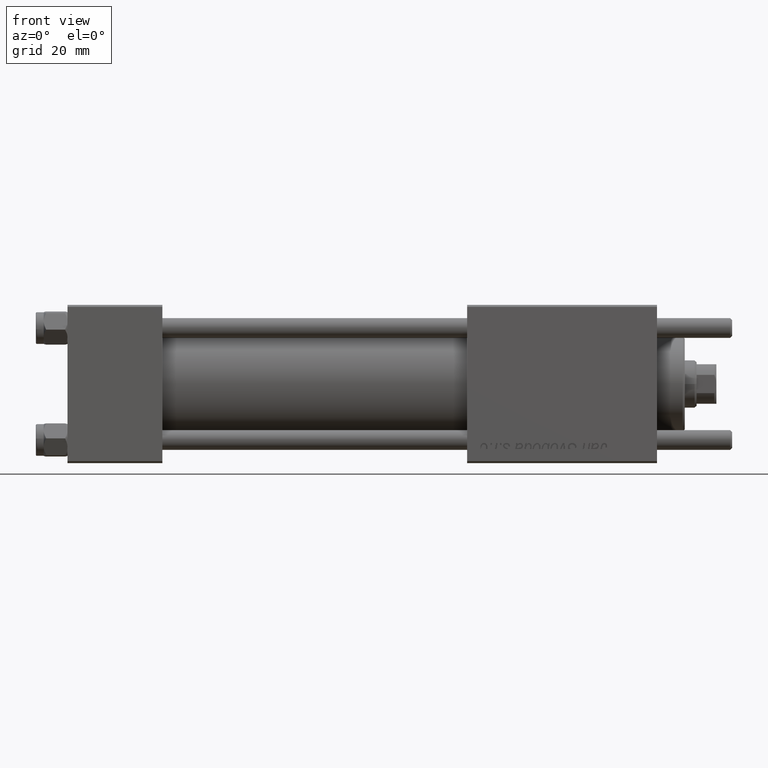
[diagram: clean part render]
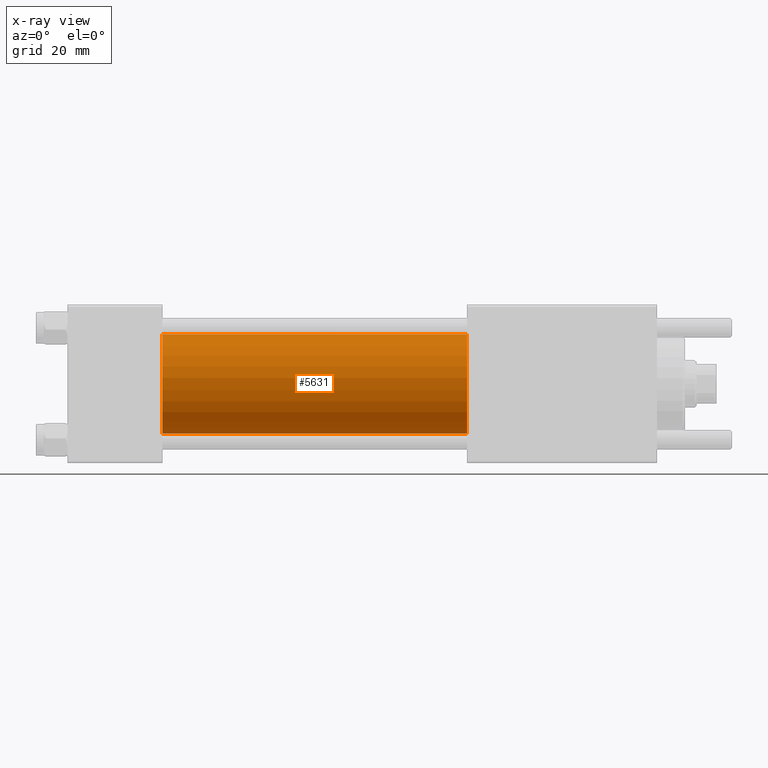
[diagram: x-ray — body ghosted, one internal face saturated and labeled with its STEP entity id]
A machine part, front view, then the same camera in x-ray: the body is ghosted and one INTERNAL B-rep face — a face not visible from any outside direction — is saturated and labeled: STEP entity #5631.
In plain terms, the highlighted cylindrical surface (partial cylindrical patch) has radius 12.5 mm, axis along (-1, -0, -0).
Its self-contained STEP definition (entity closure, byte-faithful):
#13 = DIRECTION ( 'NONE',  ( -1.000000000000000000, -0.000000000000000000, -0.000000000000000000 ) ) ;
#3605 = CARTESIAN_POINT ( 'NONE',  ( 24.00000000000000000, -2.602085213965210642E-15, 0.000000000000000000 ) ) ;
#5631 = ADVANCED_FACE ( 'NONE', ( #52221 ), #39297, .F. ) ;
#7389 = CIRCLE ( 'NONE', #39453, 12.49999999999999645 ) ;
#7569 = CARTESIAN_POINT ( 'NONE',  ( 24.00000000000000000, -1.071276715031019515E-15, -12.49999999999999645 ) ) ;
#9321 = DIRECTION ( 'NONE',  ( 0.000000000000000000, 0.000000000000000000, -1.000000000000000000 ) ) ;
#10153 = CARTESIAN_POINT ( 'NONE',  ( 101.0000000000000000, -2.602085213965210642E-15, 0.000000000000000000 ) ) ;
#12222 = LINE ( 'NONE', #29712, #32181 ) ;
#14550 = ORIENTED_EDGE ( 'NONE', *, *, #45630, .T. ) ;
#14722 = EDGE_LOOP ( 'NONE', ( #14550, #32786, #53033, #46607 ) ) ;
#16774 = CARTESIAN_POINT ( 'NONE',  ( 101.0000000000000000, -2.602085213965210642E-15, 12.49999999999999645 ) ) ;
#17910 = CARTESIAN_POINT ( 'NONE',  ( 101.0000000000000000, -2.602085213965210642E-15, 12.49999999999999645 ) ) ;
#18013 = CARTESIAN_POINT ( 'NONE',  ( 101.0000000000000000, -1.071276715031019515E-15, -12.49999999999999645 ) ) ;
#21087 = DIRECTION ( 'NONE',  ( 1.000000000000000000, 0.000000000000000000, 0.000000000000000000 ) ) ;
#23068 = DIRECTION ( 'NONE',  ( 1.000000000000000000, 0.000000000000000000, 0.000000000000000000 ) ) ;
#27359 = VERTEX_POINT ( 'NONE', #16774 ) ;
#28592 = AXIS2_PLACEMENT_3D ( 'NONE', #53335, #13, #44159 ) ;
#29712 = CARTESIAN_POINT ( 'NONE',  ( 101.0000000000000000, -1.071276715031019515E-15, -12.49999999999999645 ) ) ;
#29971 = DIRECTION ( 'NONE',  ( -1.000000000000000000, -0.000000000000000000, -0.000000000000000000 ) ) ;
#30029 = EDGE_CURVE ( 'NONE', #27359, #36197, #44297, .T. ) ;
#32181 = VECTOR ( 'NONE', #56408, 1000.000000000000000 ) ;
#32786 = ORIENTED_EDGE ( 'NONE', *, *, #40768, .T. ) ;
#34115 = VERTEX_POINT ( 'NONE', #18013 ) ;
#36197 = VERTEX_POINT ( 'NONE', #52906 ) ;
#36271 = AXIS2_PLACEMENT_3D ( 'NONE', #10153, #23068, #9321 ) ;
#39095 = EDGE_CURVE ( 'NONE', #36197, #40942, #7389, .T. ) ;
#39297 = CYLINDRICAL_SURFACE ( 'NONE', #28592, 12.49999999999999645 ) ;
#39453 = AXIS2_PLACEMENT_3D ( 'NONE', #3605, #21087, #56382 ) ;
#40768 = EDGE_CURVE ( 'NONE', #34115, #40942, #12222, .T. ) ;
#40942 = VERTEX_POINT ( 'NONE', #7569 ) ;
#41729 = CIRCLE ( 'NONE', #36271, 12.49999999999999645 ) ;
#43739 = VECTOR ( 'NONE', #29971, 1000.000000000000000 ) ;
#44159 = DIRECTION ( 'NONE',  ( 0.000000000000000000, 0.000000000000000000, 1.000000000000000000 ) ) ;
#44297 = LINE ( 'NONE', #17910, #43739 ) ;
#45630 = EDGE_CURVE ( 'NONE', #27359, #34115, #41729, .T. ) ;
#46607 = ORIENTED_EDGE ( 'NONE', *, *, #30029, .F. ) ;
#52221 = FACE_OUTER_BOUND ( 'NONE', #14722, .T. ) ;
#52906 = CARTESIAN_POINT ( 'NONE',  ( 24.00000000000000000, -2.602085213965210642E-15, 12.49999999999999645 ) ) ;
#53033 = ORIENTED_EDGE ( 'NONE', *, *, #39095, .F. ) ;
#53335 = CARTESIAN_POINT ( 'NONE',  ( 101.0000000000000000, -2.602085213965210642E-15, 0.000000000000000000 ) ) ;
#56382 = DIRECTION ( 'NONE',  ( 0.000000000000000000, 0.000000000000000000, -1.000000000000000000 ) ) ;
#56408 = DIRECTION ( 'NONE',  ( -1.000000000000000000, -0.000000000000000000, -0.000000000000000000 ) ) ;